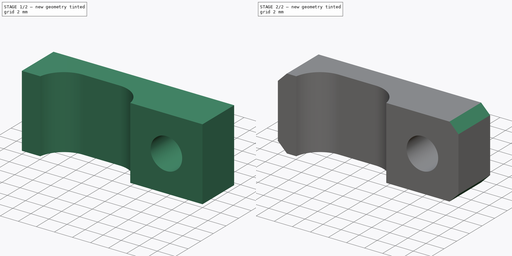
[diagram: build sequence overview — one tinted view per stage of 2, left to right]
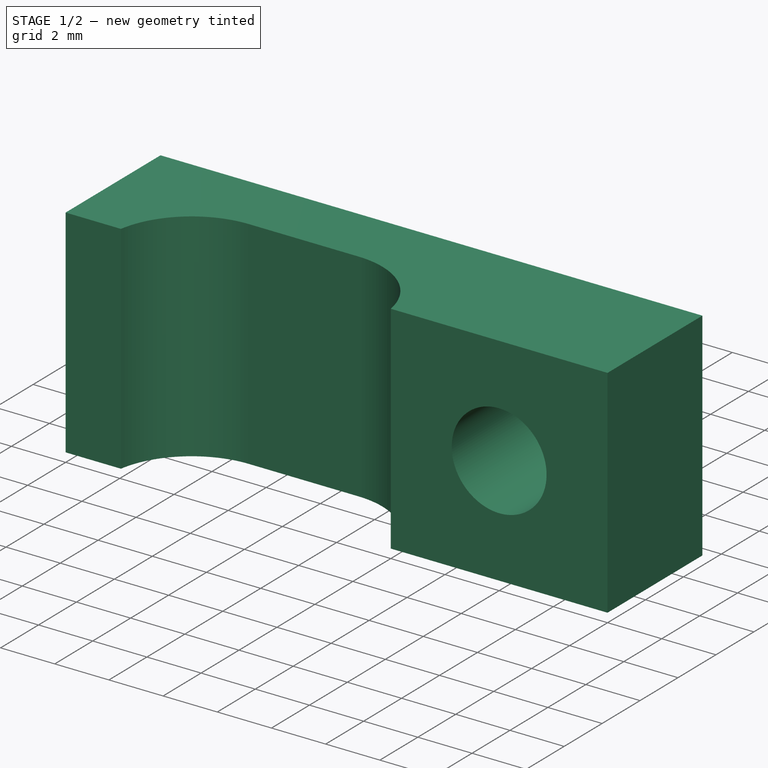
[diagram: stage 1 of 2 — iso view after this stage's code; geometry added in this stage tinted green]
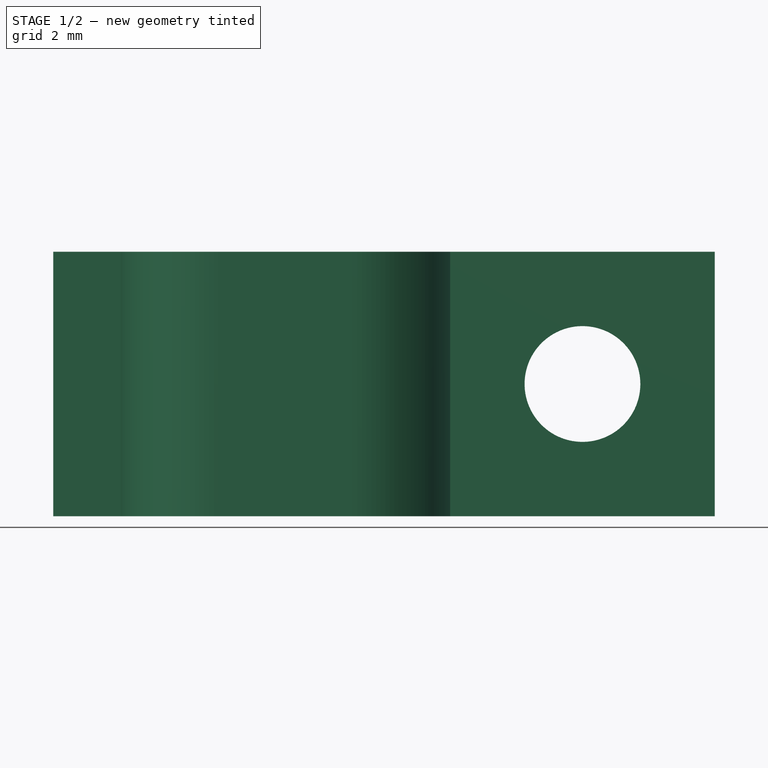
[diagram: stage 1 of 2 — front view after this stage's code; geometry added in this stage tinted green]
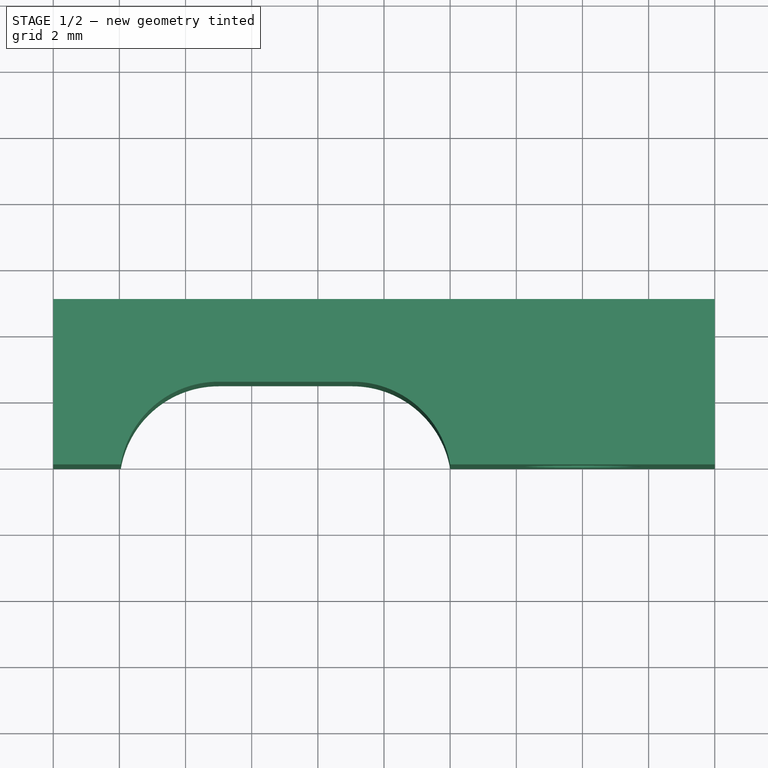
[diagram: stage 1 of 2 — top view after this stage's code; geometry added in this stage tinted green]
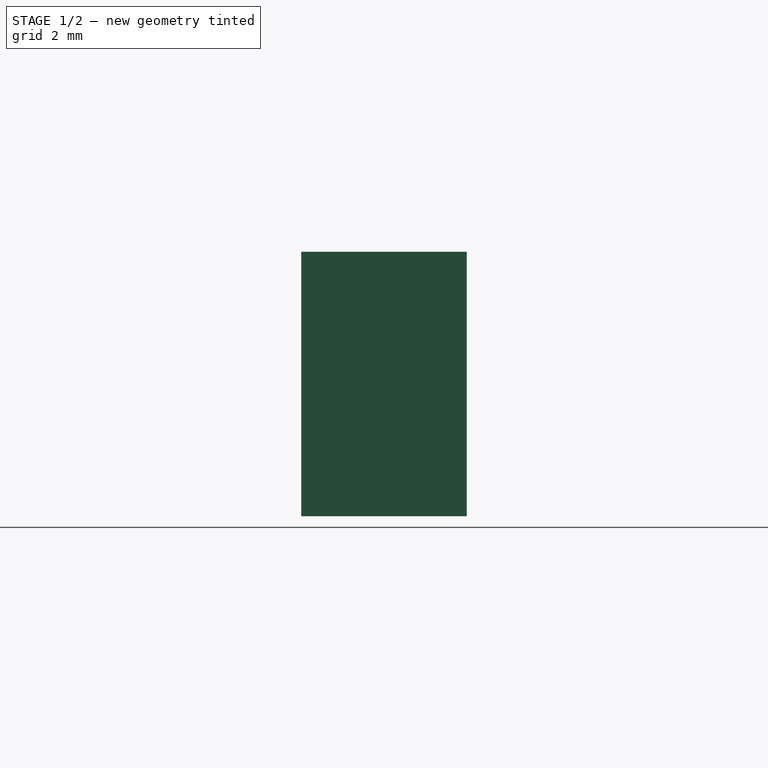
[diagram: stage 1 of 2 — right view after this stage's code; geometry added in this stage tinted green]
FCSTD DOCUMENT  (FreeCAD 0.19R24291 (Git))
Label: FDM-0023_peek-cable-guide
License: All rights reserved
LicenseURL: http://en.wikipedia.org/wiki/All_rights_reserved
objects: Sketcher::SketchObject×2, PartDesign::Plane×2, PartDesign::Pad×1, PartDesign::Pocket×1, PartDesign::Chamfer×1, Part::Part2DObjectPython×1, PartDesign::Body×1
note: 12 computed .brp shape members not serialized (recipe doc carries the construction recipe); baked Part::Feature solids carry a one-line shape summary decoded from their .brp

FEATURE [Sketcher::SketchObject] Sketch
  FullyConstrained = true
  MapMode = 5
  Support = -> [XY_Plane]
  sketch-geometry (8):
    g0: ArcOfCircle CenterX=-11 CenterY=-0.5 CenterZ=0 NormalX=0 NormalY=0 NormalZ=1 AngleXU=0 Radius=3 StartAngle=1.57079 EndAngle=2.97414
    g1: LineSegment StartX=-13.958 StartY=0 StartZ=0 EndX=-16 EndY=0 EndZ=0
    g2: LineSegment StartX=-16 StartY=0 StartZ=0 EndX=-16 EndY=5 EndZ=0
    g3: LineSegment StartX=-16 StartY=5 StartZ=0 EndX=4 EndY=5 EndZ=0
    g4: LineSegment StartX=4 StartY=5 StartZ=0 EndX=4 EndY=0 EndZ=0
    g5: LineSegment StartX=-4 StartY=-1e-16 StartZ=0 EndX=4 EndY=0 EndZ=0
    g6: ArcOfCircle CenterX=-6.95804 CenterY=-0.5 CenterZ=0 NormalX=0 NormalY=0 NormalZ=1 AngleXU=0 Radius=3 StartAngle=0.167448 EndAngle=1.5708
    g7: LineSegment StartX=-11 StartY=2.5 StartZ=0 EndX=-6.95804 EndY=2.5 EndZ=0
  constraints (25):
    c: PointOnObject(g5,g-1)
    c: PointOnObject(g0,g-1)
    c: Diameter(g0) = 6
    c: Coincident(g0,g1)
    c: Coincident(g1,g2)
    c: Vertical(g2)
    c: Coincident(g2,g3)
    c: Coincident(g3,g4)
    c: Vertical(g4)
    c: Horizontal(g1)
    c: DistanceY(g2,g2) = 5
    c: DistanceY(g0,g-1) = 0.5
    c: Coincident(g4,g5)
    c: Horizontal(g3)
    c: Symmetric(g5,g4,g-2)
    c: DistanceX(g5,g5) = 8
    c: DistanceX(g2,g-1) = 16
    c: Coincident(g6,g5)
    c: Coincident(g7,g0)
    c: Coincident(g7,g6)
    c: Tangent(g0,g7)
    c: Tangent(g7,g6)
    c: Diameter(g6) = 6
    c: DistanceY(g6,g-1) = 0.5
    c: DistanceX(g0,g-1) = 11
FEATURE [PartDesign::Pad] Pad
  AllowMultiFace = false
  Direction = (1,1,1)
  Length = 4
  Length2 = 4
  Profile = -> Sketch
  Type = 4
FEATURE [Sketcher::SketchObject] Sketch001
  FullyConstrained = true
  MapMode = 5
  Placement = pos=(0,0,0) rot=(1,0,0;1.5708rad)
  Support = -> [XZ_Plane]
  sketch-geometry (1):
    g0: Circle CenterX=0 CenterY=0 CenterZ=0 NormalX=0 NormalY=0 NormalZ=1 AngleXU=0 Radius=1.75
  constraints (2):
    c: Coincident(g0,g-1)
    c: Diameter(g0) = 3.5
FEATURE [PartDesign::Pocket] Pocket
  AllowMultiFace = false
  BaseFeature = -> Pad
  Length = 5
  Length2 = 100
  Profile = -> Sketch001
  Type = 0
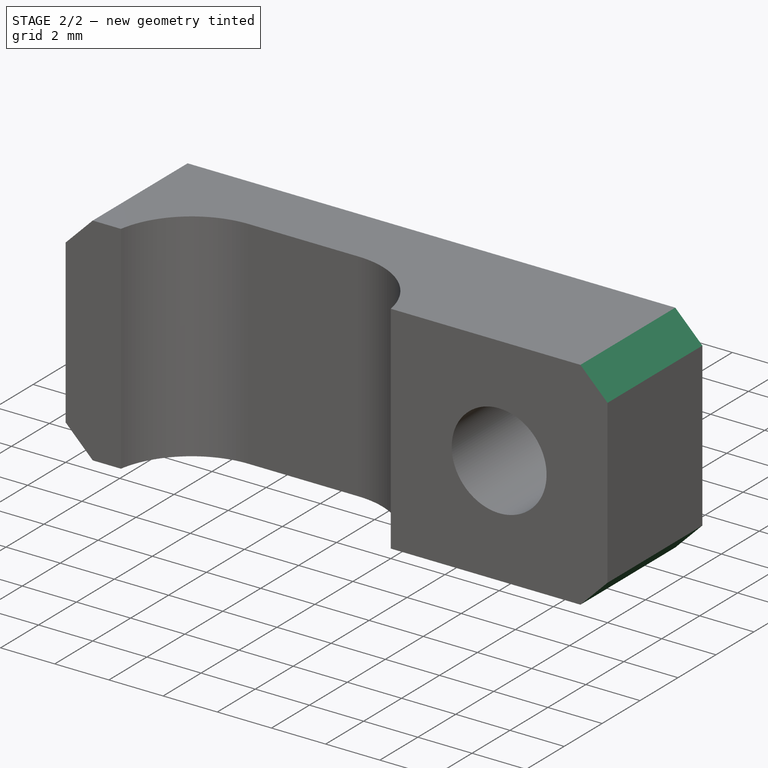
[diagram: stage 2 of 2 — iso view after this stage's code; geometry added in this stage tinted green]
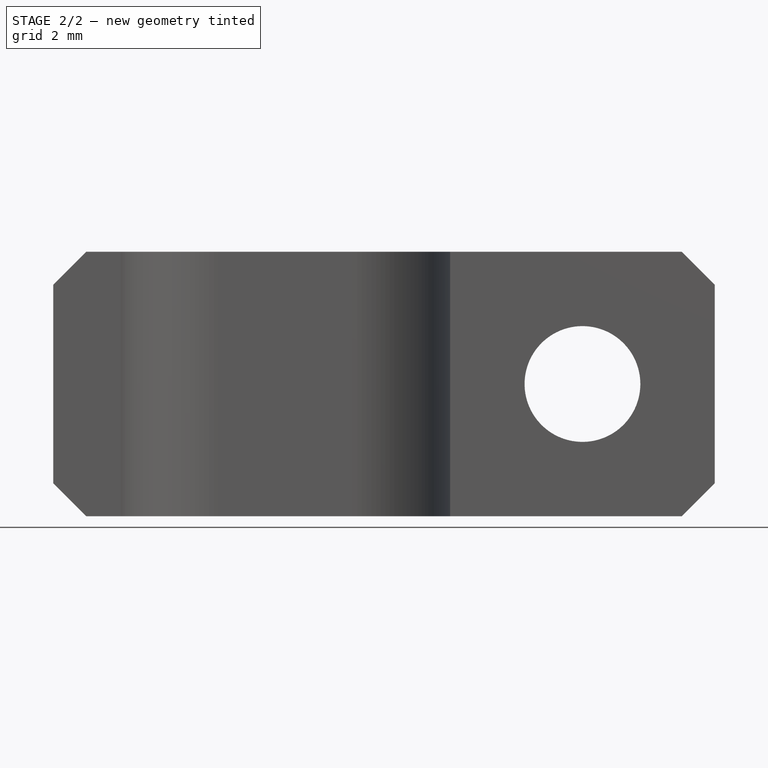
[diagram: stage 2 of 2 — front view after this stage's code; geometry added in this stage tinted green]
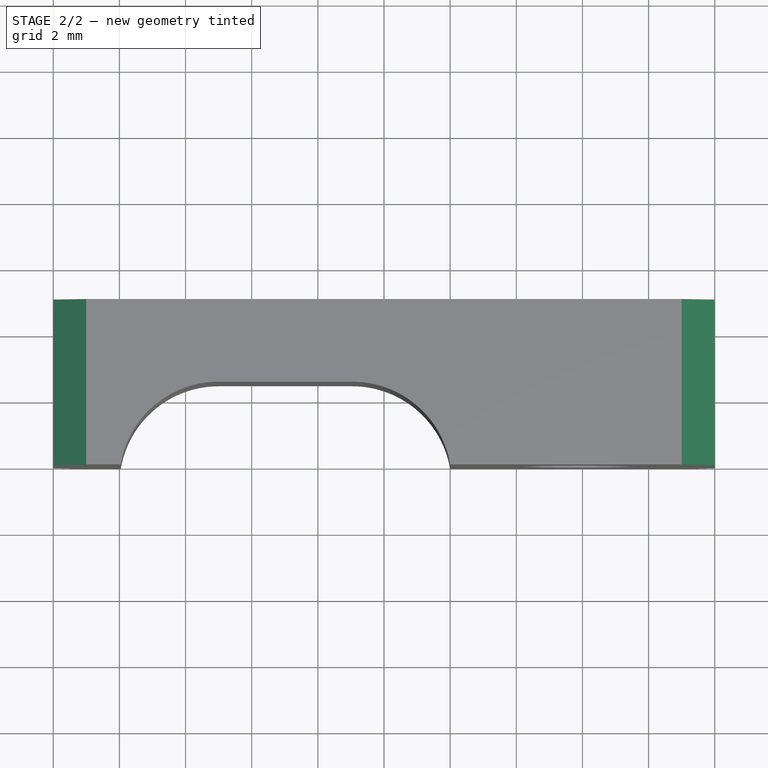
[diagram: stage 2 of 2 — top view after this stage's code; geometry added in this stage tinted green]
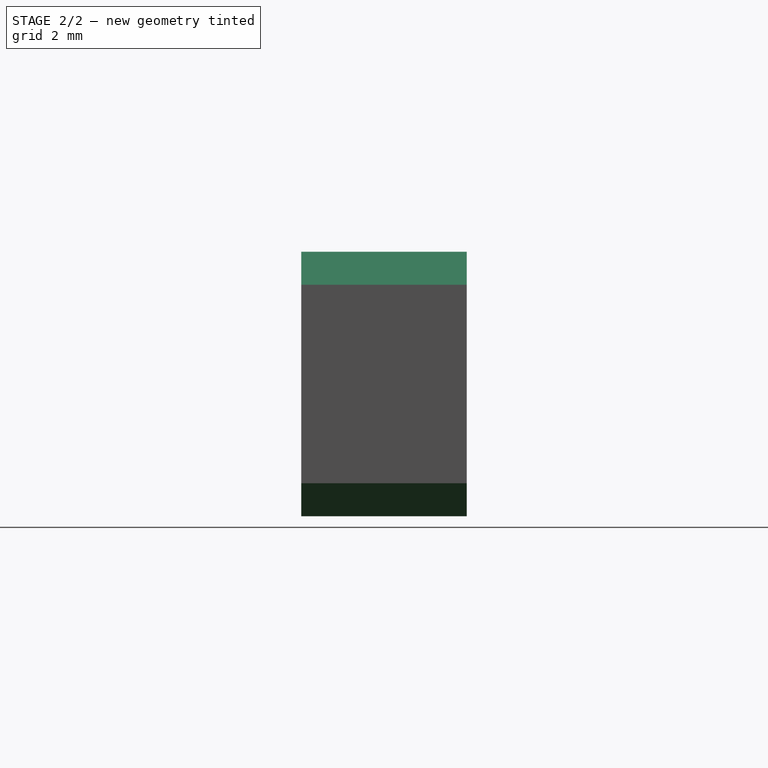
[diagram: stage 2 of 2 — right view after this stage's code; geometry added in this stage tinted green]
FEATURE [PartDesign::Chamfer] Chamfer
  Angle = 45
  Base = -> Pocket [Edge16,Edge11,Edge13,Edge18]
  BaseFeature = -> Pocket
  ChamferType = 0
  FlipDirection = false
  Size = 1
  Size2 = 1
  SupportTransform = false
FEATURE [PartDesign::Plane] DatumPlane  label="PrintPlane"
  Length = 69.3241
  MapMode = 5
  Placement = pos=(0,5,0) rot=(0,0.707107,0.707107;3.14159rad)
  ResizeMode = 0
  Support = -> [Chamfer]
  Width = 60.8173
FEATURE [PartDesign::Plane] DatumPlane001
  Length = 69.3241
  MapMode = 5
  Placement = pos=(0,0,4) rot=(0,0,1;0rad)
  ResizeMode = 0
  Support = -> [Chamfer]
  Width = 60.8173
FEATURE [Part::Part2DObjectPython] ShapeString  label="PN"  # Draft 2D object (typed FeaturePython)
  AttachmentOffset = pos=(3,4.5,0) rot=(0,0,1;3.14159rad)
  FontFile = ../../lib/fonts/RobotoMono-VariableFont_weight.ttf
  MapMode = 5
  Placement = pos=(3,4.5,4) rot=(0,0,1;3.14159rad)
  Size = 5
  String = FDM-0023-01
  Support = -> [DatumPlane001]
  Tracking = 0
  Visibility1 = false
FEATURE [PartDesign::Body] Body
  Group = -> [Sketch,Pad,Sketch001,Pocket,Chamfer,DatumPlane,DatumPlane001,ShapeString]
  Origin = -> Origin
  Tip = -> Chamfer
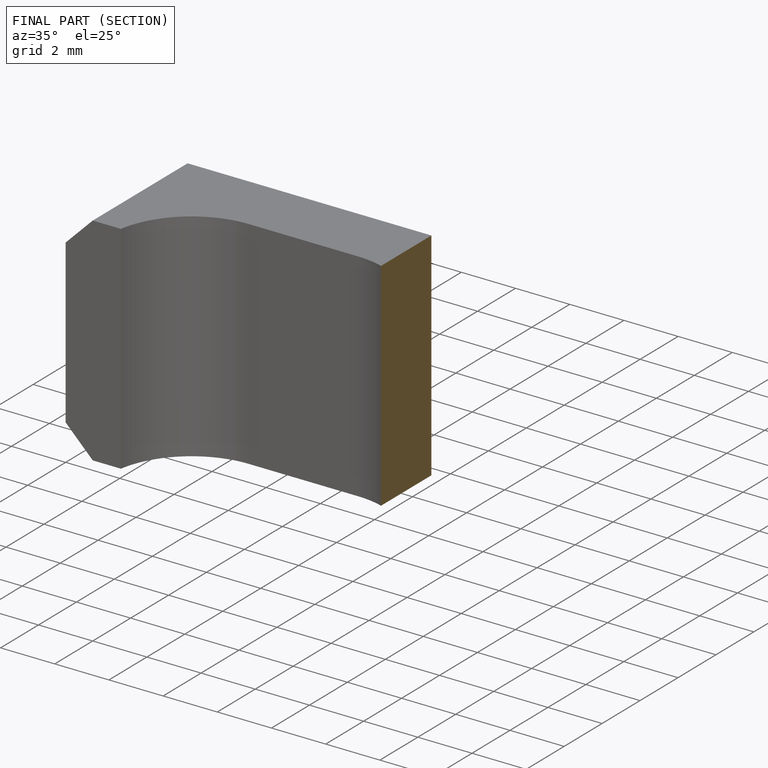
[diagram: finished part — half-section view (interior)]
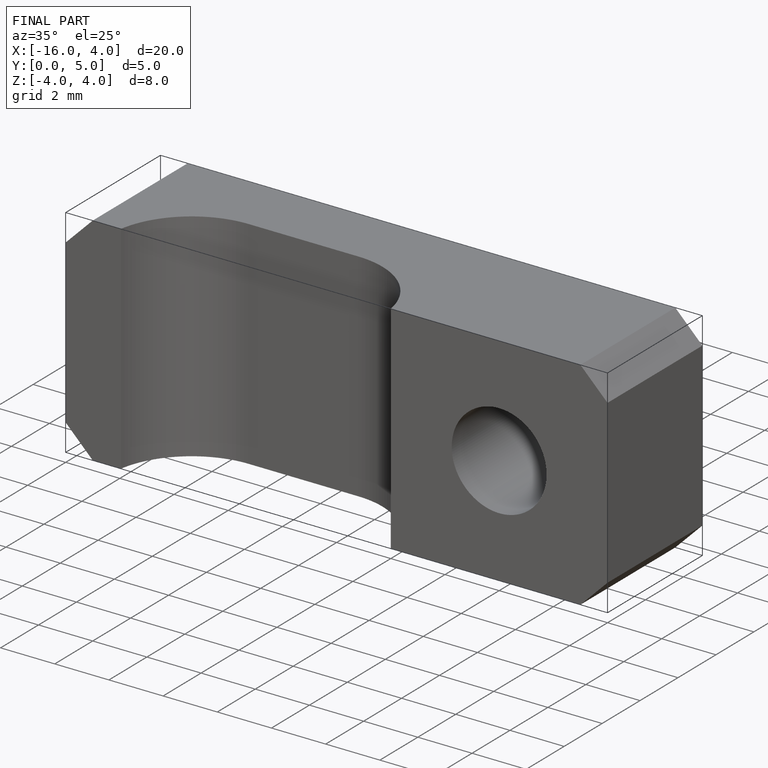
[diagram: finished part — iso view with bounding-box wireframe]
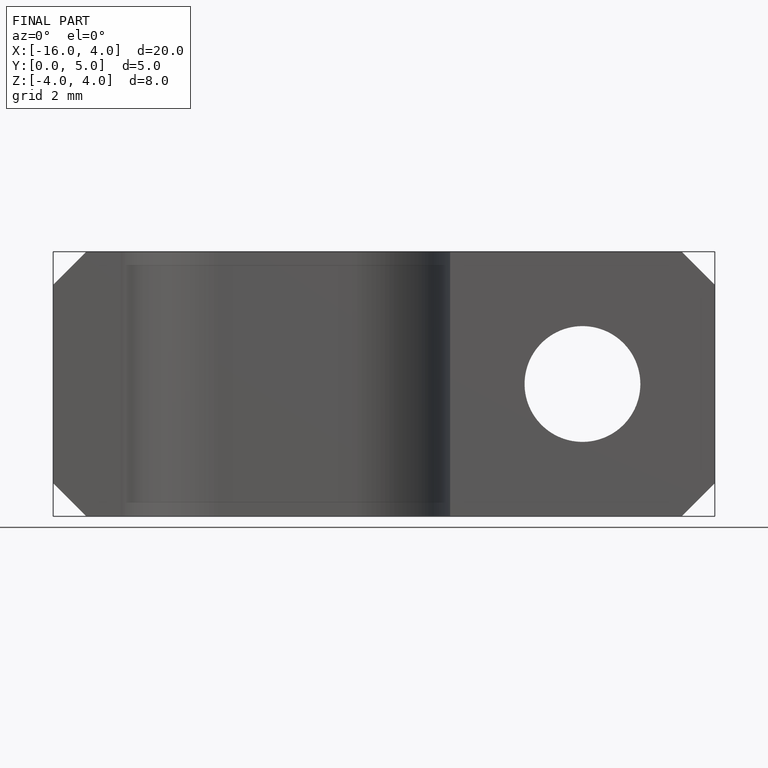
[diagram: finished part — front view with bounding-box wireframe]
